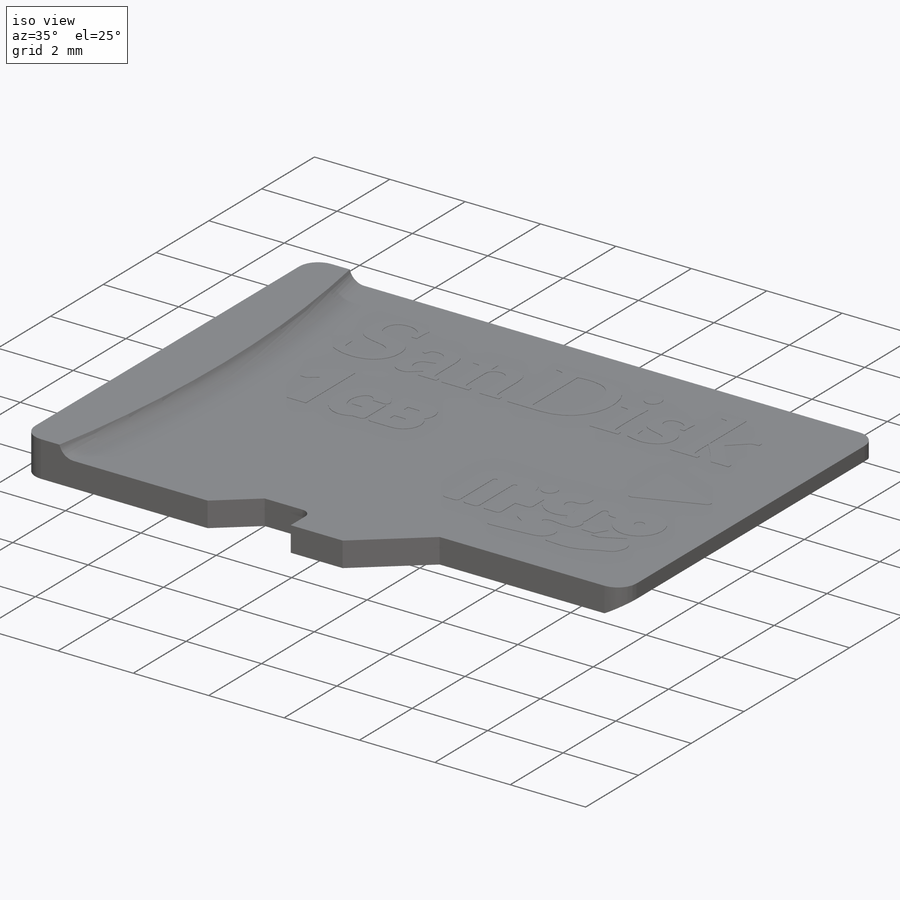
[diagram: iso view]
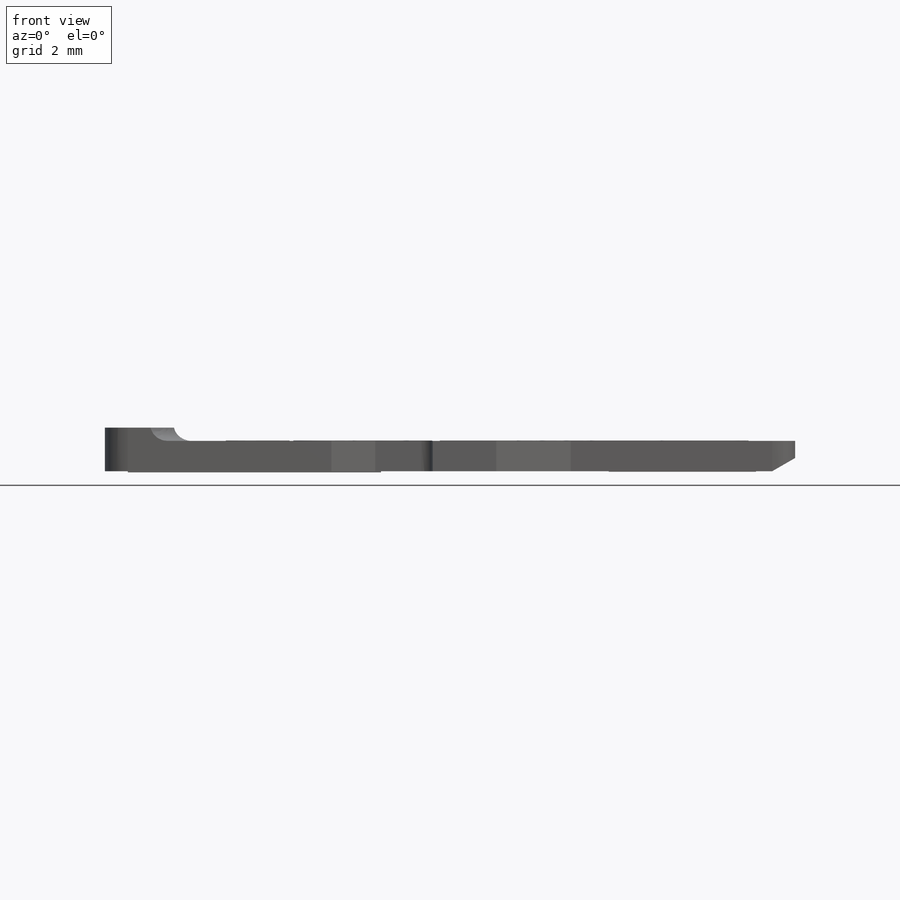
[diagram: front view]
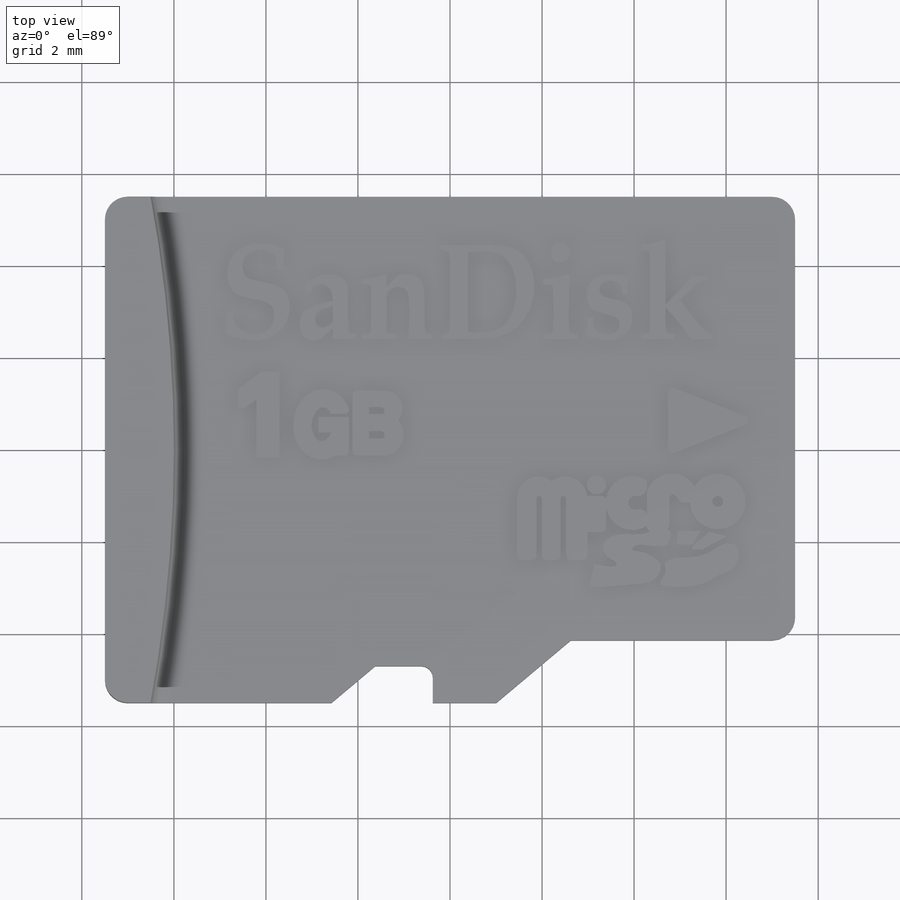
[diagram: top view]
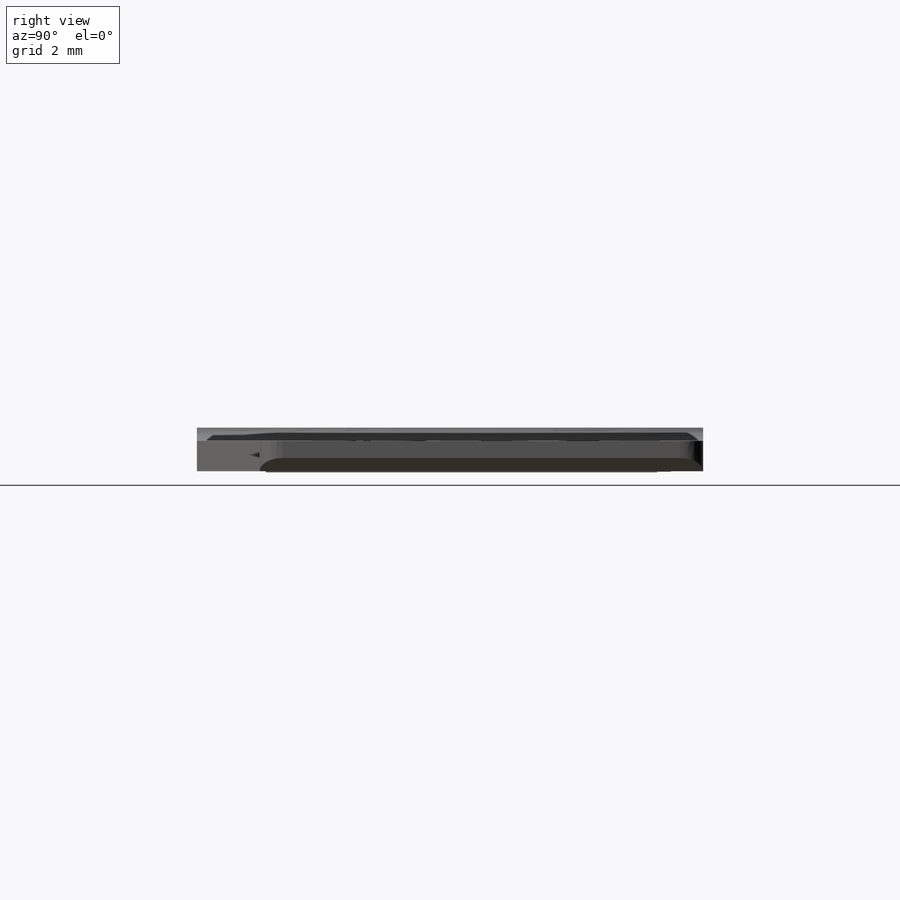
[diagram: right view]
SOLIDWORKS PART (.sldprt)
format: sldprt  version: not decoded by parser v0  size: 2,737,152 bytes
history: native  units: mm
features: sketch x8, extrude x5, fillet x3, cut_extrude x2, material x1, chamfer x1 (+13 scaffold rows collapsed)
feature tree (33):
  scaffold x13  (default folders/planes/origin — collapsed)
  material  "PBT General Purpose"
  sketch  "Sketch1"  dims[D3=0.5mm D1=15.0mm D2=11.0mm]
  extrude  "Extrude1"  Depth=0.95mm
  sketch  "Sketch2"  dims[D1=60.0mm D2=1.5mm]
  cut_extrude  "Handle"  Depth=0.29mm
  sketch  "Sketch3"  dims[c1.D1=1.36mm c1.D2=0.8mm c1.D3=~1.82012mm c2.D3=40.0deg c2.D4=7.875mm c2.D5=1.25mm c2.D6=4.875mm]
  cut_extrude  "tab"  [1 undecoded]
  fillet  "Fillet1"  Radius=0.375mm
  fillet  "Fillet2"  Radius=0.5mm
  fillet  "Fillet3"  Radius=0.25mm
  sketch  "Sketch4"  dims[c1.D1=0.1mm c1.D2=0.1mm c1.D3=0.1mm c1.D4=0.1mm c2.D3=0.4mm]
  extrude  "Extrude4"  Depth=0.01mm
  sketch  "Sketch6"
  extrude  "Extrude5"  [1 undecoded]
  sketch  "Sketch7"
  sketch  "Sketch Picture2"  dims[D1=0.81mm D2=2.9mm D3=3.2mm]
  extrude  "Extrude6"  Depth=0.01mm
  sketch  "Sketch8"  dims[D1=0.5mm D2=1.0mm D3=5.5mm D4=8.5mm]
  extrude  "Extrude7"  Depth=0.025mm
  chamfer  "Chamfer1"  Distance=0.5mm Angle=30deg
decode coverage: 15 of 19 modeling features carry decoded parameters
note: ~ marks probable driven/reference dimensions
note: 2 parameter values undecoded
note: suppression state not decoded; provenance and decode notes live in map.json
